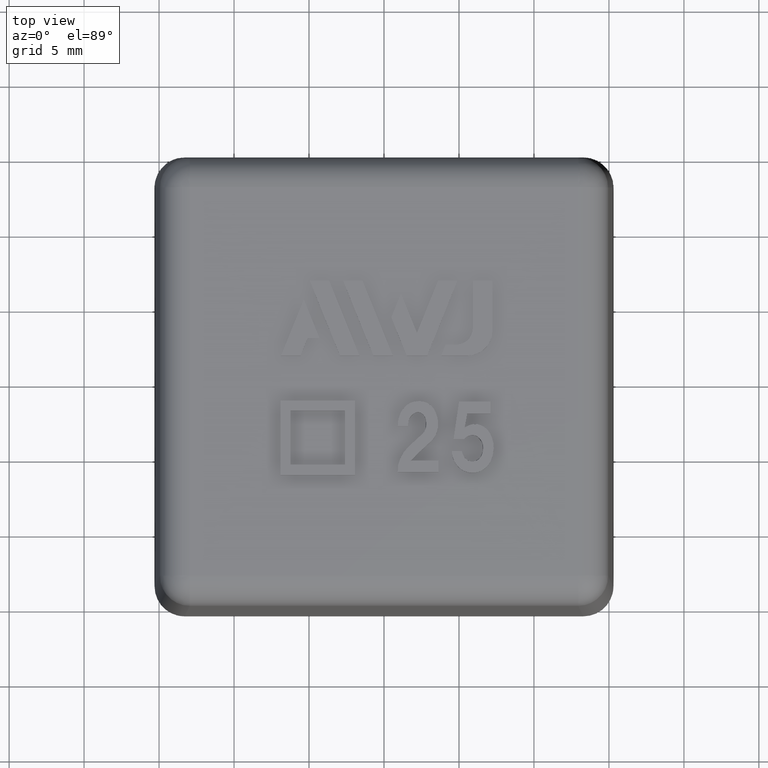
[diagram: clean part render]
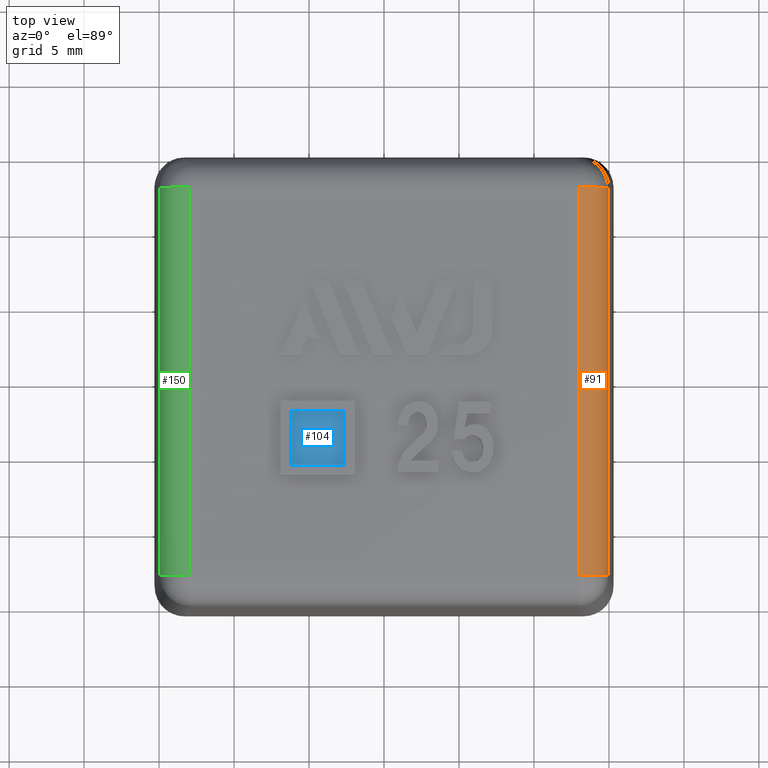
[diagram: same view with three faces highlighted in distinct colors, each labeled with its STEP entity id]
A machine part, top view with three faces highlighted in distinct colors.
Their STEP definitions:

[orange] entity #91 — the highlighted cylindrical surface (edge-blend (fillet) strip) has radius 2 mm, axis along (0, -1, 0).
#91 = ADVANCED_FACE( '', ( #200 ), #201, .T. );
#200 = FACE_OUTER_BOUND( '', #381, .T. );
#201 = CYLINDRICAL_SURFACE( '', #382, 2.00000000000000 );
#381 = EDGE_LOOP( '', ( #704, #705, #706, #707 ) );
#382 = AXIS2_PLACEMENT_3D( '', #708, #709, #710 );
#704 = ORIENTED_EDGE( '', *, *, #1312, .T. );
#705 = ORIENTED_EDGE( '', *, *, #1313, .F. );
#706 = ORIENTED_EDGE( '', *, *, #1310, .F. );
#707 = ORIENTED_EDGE( '', *, *, #1233, .F. );
#708 = CARTESIAN_POINT( '', ( 12.9505940453478, -15.3000000000000, 20.0000000000000 ) );
#709 = DIRECTION( '', ( 0.000000000000000, -1.00000000000000, 0.000000000000000 ) );
#710 = DIRECTION( '', ( 0.000000000000000, 0.000000000000000, 1.00000000000000 ) );
#1233 = EDGE_CURVE( '', #1443, #1445, #1446, .F. );
#1310 = EDGE_CURVE( '', #1445, #1584, #1585, .T. );
#1312 = EDGE_CURVE( '', #1443, #1587, #1588, .T. );
#1313 = EDGE_CURVE( '', #1584, #1587, #1589, .F. );
#1443 = VERTEX_POINT( '', #1811 );
#1445 = VERTEX_POINT( '', #1814 );
#1446 = LINE( '', #1815, #1816 );
#1584 = VERTEX_POINT( '', #2096 );
#1585 = CIRCLE( '', #2097, 2.00000000000000 );
#1587 = VERTEX_POINT( '', #2099 );
#1588 = CIRCLE( '', #2100, 2.00000000000000 );
#1589 = LINE( '', #2101, #2102 );
#1811 = CARTESIAN_POINT( '', ( 12.9505940453478, -12.9505940453478, 22.0000000000000 ) );
#1814 = CARTESIAN_POINT( '', ( 12.9505940453478, 12.9505940453478, 22.0000000000000 ) );
#1815 = CARTESIAN_POINT( '', ( 12.9505940453478, 12.9162931812664, 22.0000000000000 ) );
#1816 = VECTOR( '', #2415, 1000.00000000000 );
#2096 = CARTESIAN_POINT( '', ( 14.9502894356606, 12.9505940453478, 20.0349048128746 ) );
#2097 = AXIS2_PLACEMENT_3D( '', #2483, #2484, #2485 );
#2099 = CARTESIAN_POINT( '', ( 14.9502894356606, -12.9505940453478, 20.0349048128746 ) );
#2100 = AXIS2_PLACEMENT_3D( '', #2489, #2490, #2491 );
#2101 = CARTESIAN_POINT( '', ( 14.9502894356606, -12.9162931812664, 20.0349048128746 ) );
#2102 = VECTOR( '', #2492, 1000.00000000000 );
#2415 = DIRECTION( '', ( 0.000000000000000, -1.00000000000000, 0.000000000000000 ) );
#2483 = CARTESIAN_POINT( '', ( 12.9505940453478, 12.9505940453478, 20.0000000000000 ) );
#2484 = DIRECTION( '', ( 0.000000000000000, 1.00000000000000, 0.000000000000000 ) );
#2485 = DIRECTION( '', ( 0.000000000000000, 0.000000000000000, 1.00000000000000 ) );
#2489 = CARTESIAN_POINT( '', ( 12.9505940453478, -12.9505940453478, 20.0000000000000 ) );
#2490 = DIRECTION( '', ( 0.000000000000000, 1.00000000000000, 0.000000000000000 ) );
#2491 = DIRECTION( '', ( 0.000000000000000, 0.000000000000000, 1.00000000000000 ) );
#2492 = DIRECTION( '', ( 0.000000000000000, 1.00000000000000, 0.000000000000000 ) );

[blue] entity #104 — the highlighted planar face has unit normal (0, 0, 1).
#104 = ADVANCED_FACE( '', ( #227 ), #228, .T. );
#227 = FACE_OUTER_BOUND( '', #409, .T. );
#228 = PLANE( '', #410 );
#409 = EDGE_LOOP( '', ( #820, #821, #822, #823 ) );
#410 = AXIS2_PLACEMENT_3D( '', #824, #825, #826 );
#820 = ORIENTED_EDGE( '', *, *, #1343, .T. );
#821 = ORIENTED_EDGE( '', *, *, #1344, .T. );
#822 = ORIENTED_EDGE( '', *, *, #1345, .T. );
#823 = ORIENTED_EDGE( '', *, *, #1346, .T. );
#824 = CARTESIAN_POINT( '', ( -15.3000000000000, -15.3000000000000, 22.0000000000000 ) );
#825 = DIRECTION( '', ( 0.000000000000000, 0.000000000000000, 1.00000000000000 ) );
#826 = DIRECTION( '', ( 0.000000000000000, -1.00000000000000, 0.000000000000000 ) );
#1343 = EDGE_CURVE( '', #1637, #1638, #1639, .T. );
#1344 = EDGE_CURVE( '', #1638, #1640, #1641, .T. );
#1345 = EDGE_CURVE( '', #1640, #1642, #1643, .T. );
#1346 = EDGE_CURVE( '', #1642, #1637, #1644, .T. );
#1637 = VERTEX_POINT( '', #2193 );
#1638 = VERTEX_POINT( '', #2194 );
#1639 = B_SPLINE_CURVE_WITH_KNOTS( '', 2, ( #2195, #2196, #2197 ), .UNSPECIFIED., .F., .F., ( 3, 3 ), ( 3.00000000000000, 4.00000000000000 ), .UNSPECIFIED. );
#1640 = VERTEX_POINT( '', #2198 );
#1641 = B_SPLINE_CURVE_WITH_KNOTS( '', 2, ( #2199, #2200, #2201 ), .UNSPECIFIED., .F., .F., ( 3, 3 ), ( 0.000000000000000, 1.00000000000000 ), .UNSPECIFIED. );
#1642 = VERTEX_POINT( '', #2202 );
#1643 = B_SPLINE_CURVE_WITH_KNOTS( '', 2, ( #2203, #2204, #2205 ), .UNSPECIFIED., .F., .F., ( 3, 3 ), ( 1.00000000000000, 2.00000000000000 ), .UNSPECIFIED. );
#1644 = B_SPLINE_CURVE_WITH_KNOTS( '', 2, ( #2206, #2207, #2208 ), .UNSPECIFIED., .F., .F., ( 3, 3 ), ( 2.00000000000000, 3.00000000000000 ), .UNSPECIFIED. );
#2193 = CARTESIAN_POINT( '', ( -6.22956306818186, -1.97991818181820, 22.0000000000000 ) );
#2194 = CARTESIAN_POINT( '', ( -6.22956306818186, -5.59355454545456, 22.0000000000000 ) );
#2195 = CARTESIAN_POINT( '', ( -6.22956306818186, -1.97991818181820, 22.0000000000000 ) );
#2196 = CARTESIAN_POINT( '', ( -6.22956306818186, -3.78673636363638, 22.0000000000000 ) );
#2197 = CARTESIAN_POINT( '', ( -6.22956306818186, -5.59355454545456, 22.0000000000000 ) );
#2198 = CARTESIAN_POINT( '', ( -2.61592670454550, -5.59355454545456, 22.0000000000000 ) );
#2199 = CARTESIAN_POINT( '', ( -6.22956306818186, -5.59355454545456, 22.0000000000000 ) );
#2200 = CARTESIAN_POINT( '', ( -4.42274488636368, -5.59355454545456, 22.0000000000000 ) );
#2201 = CARTESIAN_POINT( '', ( -2.61592670454550, -5.59355454545456, 22.0000000000000 ) );
#2202 = CARTESIAN_POINT( '', ( -2.61592670454550, -1.97991818181820, 22.0000000000000 ) );
#2203 = CARTESIAN_POINT( '', ( -2.61592670454550, -5.59355454545456, 22.0000000000000 ) );
#2204 = CARTESIAN_POINT( '', ( -2.61592670454550, -3.78673636363638, 22.0000000000000 ) );
#2205 = CARTESIAN_POINT( '', ( -2.61592670454550, -1.97991818181820, 22.0000000000000 ) );
#2206 = CARTESIAN_POINT( '', ( -2.61592670454550, -1.97991818181820, 22.0000000000000 ) );
#2207 = CARTESIAN_POINT( '', ( -4.42274488636368, -1.97991818181820, 22.0000000000000 ) );
#2208 = CARTESIAN_POINT( '', ( -6.22956306818186, -1.97991818181820, 22.0000000000000 ) );

[green] entity #150 — the highlighted cylindrical surface (edge-blend (fillet) strip) has radius 2 mm, axis along (0, 1, 0).
#150 = ADVANCED_FACE( '', ( #320 ), #321, .T. );
#320 = FACE_OUTER_BOUND( '', #503, .T. );
#321 = CYLINDRICAL_SURFACE( '', #504, 2.00000000000000 );
#503 = EDGE_LOOP( '', ( #1164, #1165, #1166, #1167 ) );
#504 = AXIS2_PLACEMENT_3D( '', #1168, #1169, #1170 );
#1164 = ORIENTED_EDGE( '', *, *, #1424, .T. );
#1165 = ORIENTED_EDGE( '', *, *, #1235, .F. );
#1166 = ORIENTED_EDGE( '', *, *, #1307, .F. );
#1167 = ORIENTED_EDGE( '', *, *, #1279, .F. );
#1168 = CARTESIAN_POINT( '', ( -12.9505940453478, -15.3000000000000, 20.0000000000000 ) );
#1169 = DIRECTION( '', ( 0.000000000000000, 1.00000000000000, 0.000000000000000 ) );
#1170 = DIRECTION( '', ( 0.000000000000000, 0.000000000000000, -1.00000000000000 ) );
#1235 = EDGE_CURVE( '', #1447, #1442, #1449, .F. );
#1279 = EDGE_CURVE( '', #1535, #1537, #1538, .F. );
#1307 = EDGE_CURVE( '', #1537, #1447, #1581, .T. );
#1424 = EDGE_CURVE( '', #1535, #1442, #1760, .T. );
#1442 = VERTEX_POINT( '', #1810 );
#1447 = VERTEX_POINT( '', #1817 );
#1449 = LINE( '', #1820, #1821 );
#1535 = VERTEX_POINT( '', #1981 );
#1537 = VERTEX_POINT( '', #1984 );
#1538 = LINE( '', #1985, #1986 );
#1581 = CIRCLE( '', #2093, 2.00000000000000 );
#1760 = CIRCLE( '', #2405, 2.00000000000000 );
#1810 = CARTESIAN_POINT( '', ( -12.9505940453478, -12.9505940453478, 22.0000000000000 ) );
#1817 = CARTESIAN_POINT( '', ( -12.9505940453478, 12.9505940453478, 22.0000000000000 ) );
#1820 = CARTESIAN_POINT( '', ( -12.9505940453478, -12.9162931812664, 22.0000000000000 ) );
#1821 = VECTOR( '', #2417, 1000.00000000000 );
#1981 = CARTESIAN_POINT( '', ( -14.9502894356606, -12.9505940453478, 20.0349048128746 ) );
#1984 = CARTESIAN_POINT( '', ( -14.9502894356606, 12.9505940453478, 20.0349048128746 ) );
#1985 = CARTESIAN_POINT( '', ( -14.9502894356606, 12.9162931812664, 20.0349048128746 ) );
#1986 = VECTOR( '', #2451, 1000.00000000000 );
#2093 = AXIS2_PLACEMENT_3D( '', #2474, #2475, #2476 );
#2405 = AXIS2_PLACEMENT_3D( '', #2598, #2599, #2600 );
#2417 = DIRECTION( '', ( 0.000000000000000, 1.00000000000000, 0.000000000000000 ) );
#2451 = DIRECTION( '', ( 0.000000000000000, -1.00000000000000, 0.000000000000000 ) );
#2474 = CARTESIAN_POINT( '', ( -12.9505940453478, 12.9505940453478, 20.0000000000000 ) );
#2475 = DIRECTION( '', ( 0.000000000000000, 1.00000000000000, 0.000000000000000 ) );
#2476 = DIRECTION( '', ( 0.000000000000000, 0.000000000000000, 1.00000000000000 ) );
#2598 = CARTESIAN_POINT( '', ( -12.9505940453478, -12.9505940453478, 20.0000000000000 ) );
#2599 = DIRECTION( '', ( 0.000000000000000, 1.00000000000000, 0.000000000000000 ) );
#2600 = DIRECTION( '', ( 0.000000000000000, 0.000000000000000, 1.00000000000000 ) );